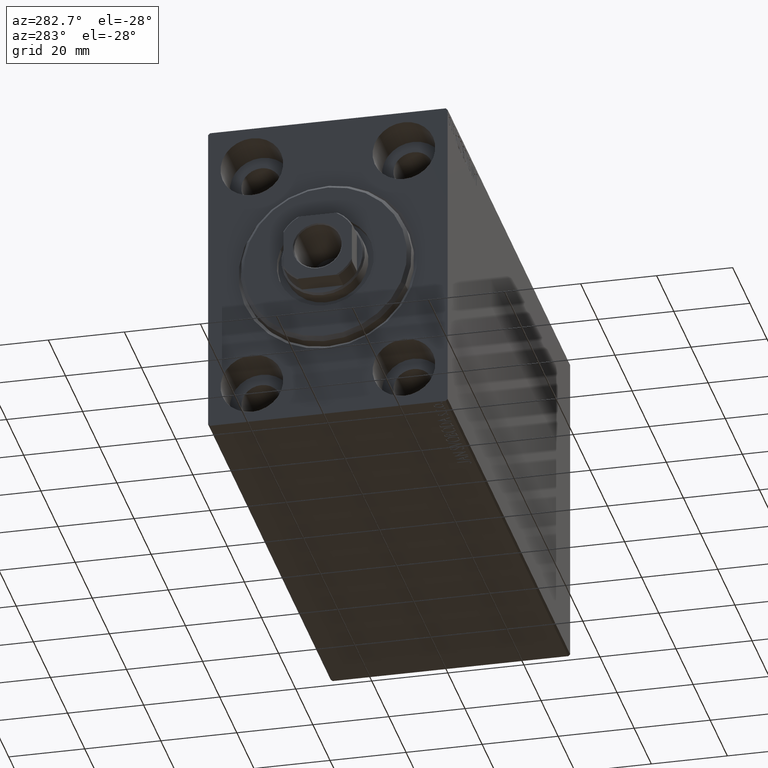
[diagram: clean part render]
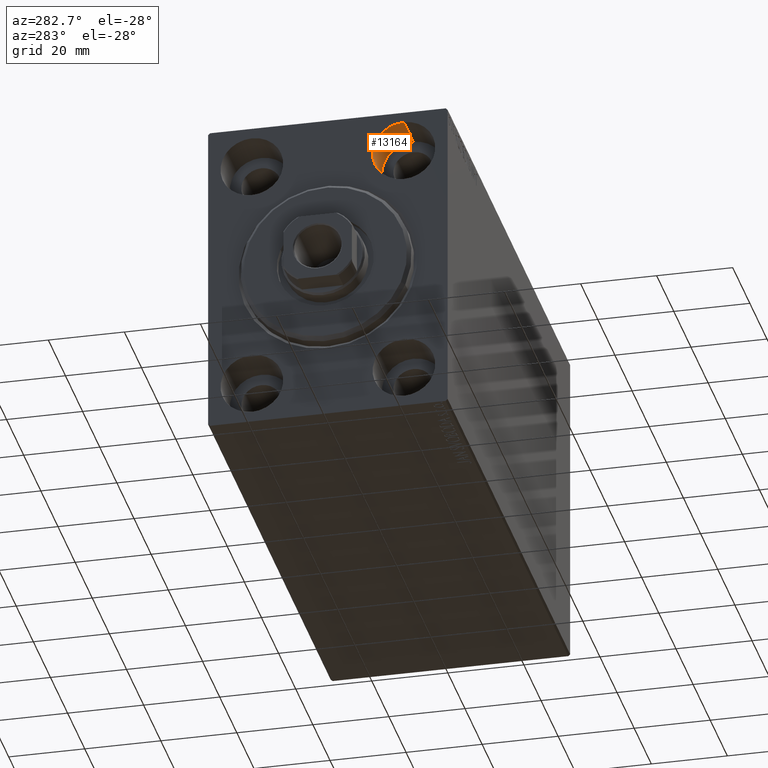
[diagram: same view with one face highlighted and labeled with its STEP entity id]
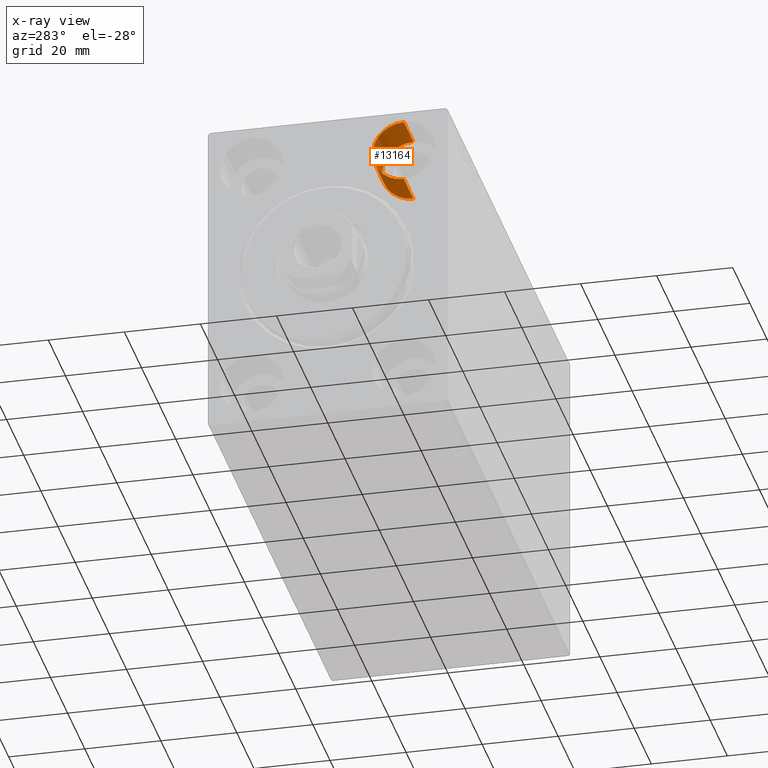
[diagram: x-ray of the same camera — body ghosted, the highlighted face saturated]
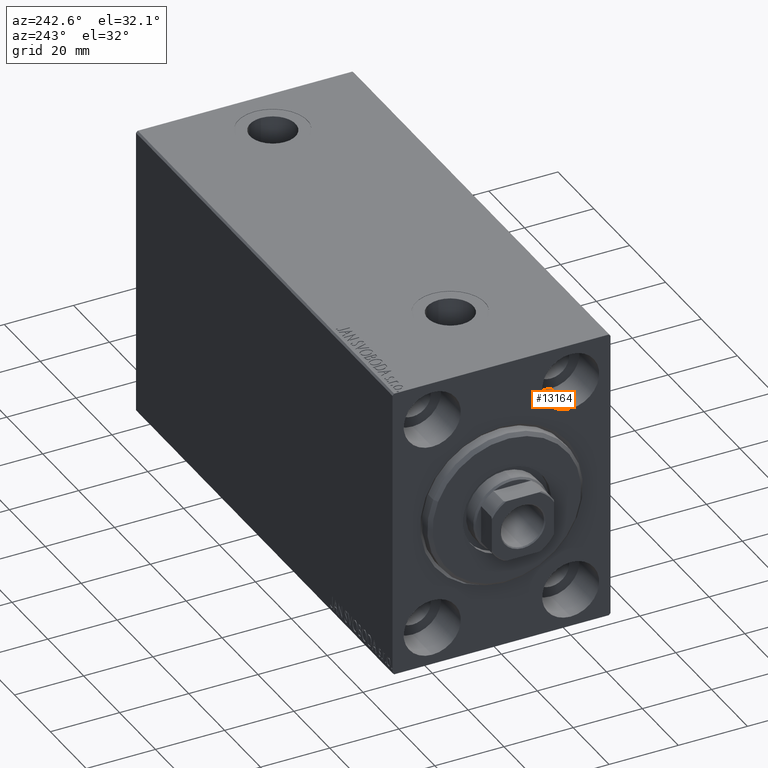
[diagram: same view with one face highlighted and labeled with its STEP entity id]
A machine part, auxiliary view. The second image highlights one B-rep face of the part: STEP entity #13164.
The next image is the same camera in x-ray: the body ghosted, the highlighted face saturated — about 0% of this face is hidden behind the body in this view.
A second angle (auxiliary view) of the same face is appended — the face is thin or edge-on in the first view.
In plain terms, the highlighted cylindrical surface (edge-blend (fillet) strip) has radius 8.25 mm, axis along (-1, -0, -0).
Its self-contained STEP definition (entity closure, byte-faithful):
#1912 = AXIS2_PLACEMENT_3D ( 'NONE', #36746, #43649, #9848 ) ;
#2104 = FACE_OUTER_BOUND ( 'NONE', #3254, .T. ) ;
#2428 = ORIENTED_EDGE ( 'NONE', *, *, #35591, .F. ) ;
#3254 = EDGE_LOOP ( 'NONE', ( #2428, #10601, #31031, #26927 ) ) ;
#4179 = CARTESIAN_POINT ( 'NONE',  ( 11.00000000000000000, -19.99999999999999645, 31.50000000000000000 ) ) ;
#4810 = VERTEX_POINT ( 'NONE', #43367 ) ;
#5744 = CARTESIAN_POINT ( 'NONE',  ( 11.00000000000000000, -19.99999999999999645, 23.25000000000000355 ) ) ;
#7196 = VECTOR ( 'NONE', #22728, 1000.000000000000000 ) ;
#8418 = CARTESIAN_POINT ( 'NONE',  ( 11.00000000000000000, -19.99999999999999645, 39.74999999999999289 ) ) ;
#8726 = CARTESIAN_POINT ( 'NONE',  ( 11.00000000000000000, -19.99999999999999645, 39.74999999999999289 ) ) ;
#9302 = DIRECTION ( 'NONE',  ( -1.000000000000000000, -0.000000000000000000, -0.000000000000000000 ) ) ;
#9790 = VERTEX_POINT ( 'NONE', #23880 ) ;
#9848 = DIRECTION ( 'NONE',  ( 0.000000000000000000, 0.000000000000000000, 1.000000000000000000 ) ) ;
#10601 = ORIENTED_EDGE ( 'NONE', *, *, #35313, .F. ) ;
#11189 = CARTESIAN_POINT ( 'NONE',  ( 11.00000000000000000, -19.99999999999999645, 23.25000000000000355 ) ) ;
#13164 = ADVANCED_FACE ( 'NONE', ( #2104 ), #41897, .F. ) ;
#15952 = VERTEX_POINT ( 'NONE', #8418 ) ;
#17740 = DIRECTION ( 'NONE',  ( -1.000000000000000000, 0.000000000000000000, 0.000000000000000000 ) ) ;
#18732 = LINE ( 'NONE', #8726, #7196 ) ;
#19703 = CIRCLE ( 'NONE', #1912, 8.249999999999992895 ) ;
#20712 = EDGE_CURVE ( 'NONE', #15952, #9790, #18732, .T. ) ;
#21073 = DIRECTION ( 'NONE',  ( 0.000000000000000000, 0.000000000000000000, 1.000000000000000000 ) ) ;
#21664 = VECTOR ( 'NONE', #9302, 1000.000000000000000 ) ;
#22361 = CIRCLE ( 'NONE', #27988, 8.249999999999992895 ) ;
#22728 = DIRECTION ( 'NONE',  ( -1.000000000000000000, -0.000000000000000000, -0.000000000000000000 ) ) ;
#23880 = CARTESIAN_POINT ( 'NONE',  ( 0.000000000000000000, -19.99999999999999645, 39.74999999999999289 ) ) ;
#25443 = DIRECTION ( 'NONE',  ( 0.000000000000000000, 0.000000000000000000, 1.000000000000000000 ) ) ;
#26197 = AXIS2_PLACEMENT_3D ( 'NONE', #38334, #34994, #25443 ) ;
#26927 = ORIENTED_EDGE ( 'NONE', *, *, #38998, .T. ) ;
#27988 = AXIS2_PLACEMENT_3D ( 'NONE', #4179, #17740, #21073 ) ;
#31031 = ORIENTED_EDGE ( 'NONE', *, *, #20712, .T. ) ;
#34994 = DIRECTION ( 'NONE',  ( -1.000000000000000000, -0.000000000000000000, -0.000000000000000000 ) ) ;
#35313 = EDGE_CURVE ( 'NONE', #15952, #39888, #22361, .T. ) ;
#35591 = EDGE_CURVE ( 'NONE', #39888, #4810, #36413, .T. ) ;
#36413 = LINE ( 'NONE', #5744, #21664 ) ;
#36746 = CARTESIAN_POINT ( 'NONE',  ( 0.000000000000000000, -19.99999999999999645, 31.50000000000000000 ) ) ;
#38334 = CARTESIAN_POINT ( 'NONE',  ( 11.00000000000000000, -19.99999999999999645, 31.50000000000000000 ) ) ;
#38998 = EDGE_CURVE ( 'NONE', #9790, #4810, #19703, .T. ) ;
#39888 = VERTEX_POINT ( 'NONE', #11189 ) ;
#41897 = CYLINDRICAL_SURFACE ( 'NONE', #26197, 8.249999999999992895 ) ;
#43367 = CARTESIAN_POINT ( 'NONE',  ( 0.000000000000000000, -19.99999999999999645, 23.25000000000000355 ) ) ;
#43649 = DIRECTION ( 'NONE',  ( -1.000000000000000000, 0.000000000000000000, 0.000000000000000000 ) ) ;